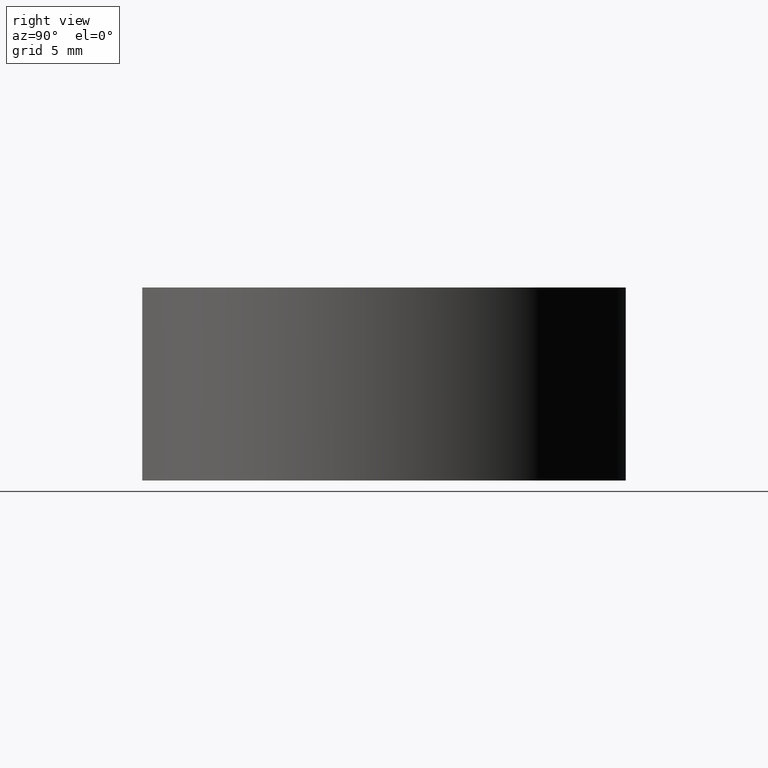
[diagram: clean part render]
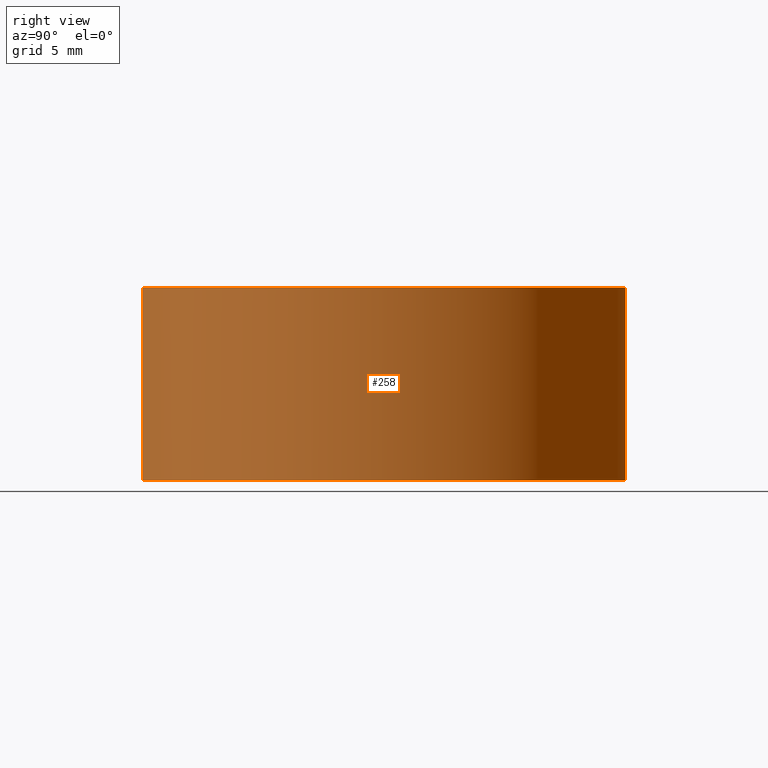
[diagram: same view with one face highlighted and labeled with its STEP entity id]
A machine part, right view. The second image highlights one B-rep face of the part: STEP entity #258.
In plain terms, the highlighted cylindrical surface (partial cylindrical patch) has radius 20 mm, axis along (-0, -0, -1).
Its self-contained STEP definition (entity closure, byte-faithful):
#24 = ORIENTED_EDGE ( 'NONE', *, *, #608, .T. ) ;
#28 = AXIS2_PLACEMENT_3D ( 'NONE', #722, #43, #795 ) ;
#42 = DIRECTION ( 'NONE',  ( -1.000000000000000000, 0.0000000000000000000, 1.301042606982605300E-016 ) ) ;
#43 = DIRECTION ( 'NONE',  ( -1.224646799147350500E-016, -0.0000000000000000000, -1.000000000000000000 ) ) ;
#51 = VECTOR ( 'NONE', #815, 1000.000000000000000 ) ;
#55 = DIRECTION ( 'NONE',  ( -1.224646799147350500E-016, -0.0000000000000000000, -1.000000000000000000 ) ) ;
#76 = AXIS2_PLACEMENT_3D ( 'NONE', #355, #55, #42 ) ;
#131 = LINE ( 'NONE', #220, #51 ) ;
#215 = DIRECTION ( 'NONE',  ( -1.224646799147350500E-016, -0.0000000000000000000, -1.000000000000000000 ) ) ;
#220 = CARTESIAN_POINT ( 'NONE',  ( 6.823488843692808300, 18.79999999999999400, -31.93906810035839800 ) ) ;
#258 = ADVANCED_FACE ( 'NONE', ( #645 ), #433, .T. ) ;
#270 = DIRECTION ( 'NONE',  ( -1.000000000000000000, 0.0000000000000000000, 0.0000000000000000000 ) ) ;
#271 = CARTESIAN_POINT ( 'NONE',  ( 6.823488843692798500, -18.80000000000000100, 7.500000000000000000 ) ) ;
#286 = EDGE_CURVE ( 'NONE', #293, #711, #440, .T. ) ;
#288 = LINE ( 'NONE', #351, #785 ) ;
#293 = VERTEX_POINT ( 'NONE', #353 ) ;
#294 = AXIS2_PLACEMENT_3D ( 'NONE', #580, #729, #270 ) ;
#328 = EDGE_LOOP ( 'NONE', ( #840, #681, #796, #24 ) ) ;
#351 = CARTESIAN_POINT ( 'NONE',  ( 6.823488843692808300, -18.79999999999999400, -31.93906810035839800 ) ) ;
#353 = CARTESIAN_POINT ( 'NONE',  ( 6.823488843692795800, 18.80000000000000100, -7.500000000000000900 ) ) ;
#355 = CARTESIAN_POINT ( 'NONE',  ( 4.829892851045827200E-015, 0.0000000000000000000, 7.499999999999992900 ) ) ;
#409 = VERTEX_POINT ( 'NONE', #843 ) ;
#433 = CYLINDRICAL_SURFACE ( 'NONE', #294, 20.00000000000000000 ) ;
#440 = CIRCLE ( 'NONE', #28, 20.00000000000000000 ) ;
#580 = CARTESIAN_POINT ( 'NONE',  ( 0.0000000000000000000, 0.0000000000000000000, -31.93906810035839800 ) ) ;
#608 = EDGE_CURVE ( 'NONE', #293, #409, #131, .T. ) ;
#645 = FACE_OUTER_BOUND ( 'NONE', #328, .T. ) ;
#650 = EDGE_CURVE ( 'NONE', #902, #711, #288, .T. ) ;
#681 = ORIENTED_EDGE ( 'NONE', *, *, #650, .T. ) ;
#711 = VERTEX_POINT ( 'NONE', #777 ) ;
#722 = CARTESIAN_POINT ( 'NONE',  ( 2.992922652324802700E-015, 0.0000000000000000000, -7.500000000000000000 ) ) ;
#729 = DIRECTION ( 'NONE',  ( -1.224646799147350500E-016, -0.0000000000000000000, -1.000000000000000000 ) ) ;
#777 = CARTESIAN_POINT ( 'NONE',  ( 6.823488843692795800, -18.80000000000000100, -7.500000000000000900 ) ) ;
#785 = VECTOR ( 'NONE', #215, 1000.000000000000000 ) ;
#795 = DIRECTION ( 'NONE',  ( -1.000000000000000000, 0.0000000000000000000, 1.301042606982605300E-016 ) ) ;
#796 = ORIENTED_EDGE ( 'NONE', *, *, #286, .F. ) ;
#815 = DIRECTION ( 'NONE',  ( 1.224646799147350500E-016, 0.0000000000000000000, 1.000000000000000000 ) ) ;
#840 = ORIENTED_EDGE ( 'NONE', *, *, #897, .T. ) ;
#843 = CARTESIAN_POINT ( 'NONE',  ( 6.823488843692798500, 18.80000000000000100, 7.500000000000000000 ) ) ;
#897 = EDGE_CURVE ( 'NONE', #409, #902, #930, .T. ) ;
#902 = VERTEX_POINT ( 'NONE', #271 ) ;
#930 = CIRCLE ( 'NONE', #76, 20.00000000000000000 ) ;